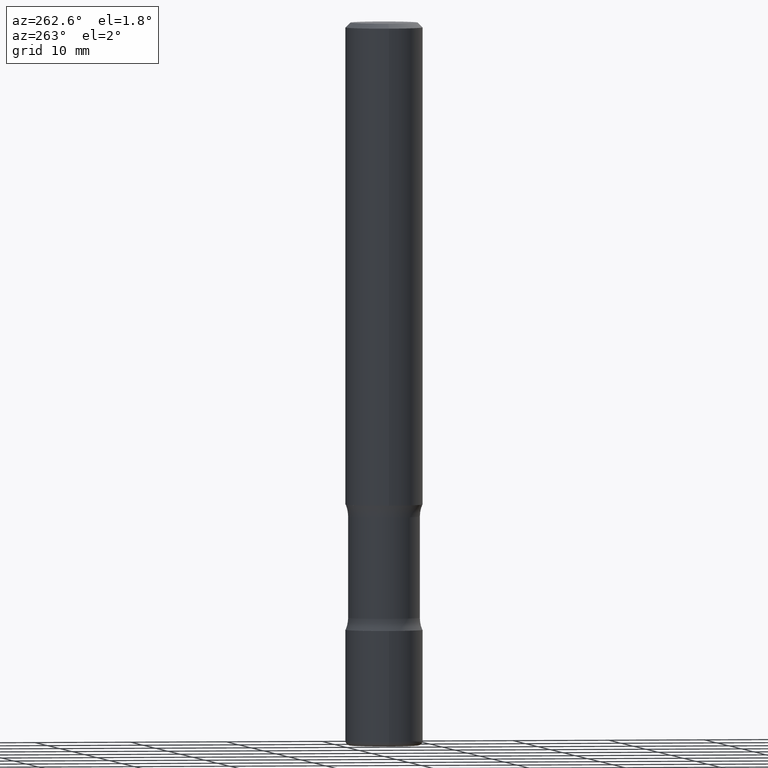
[diagram: clean part render]
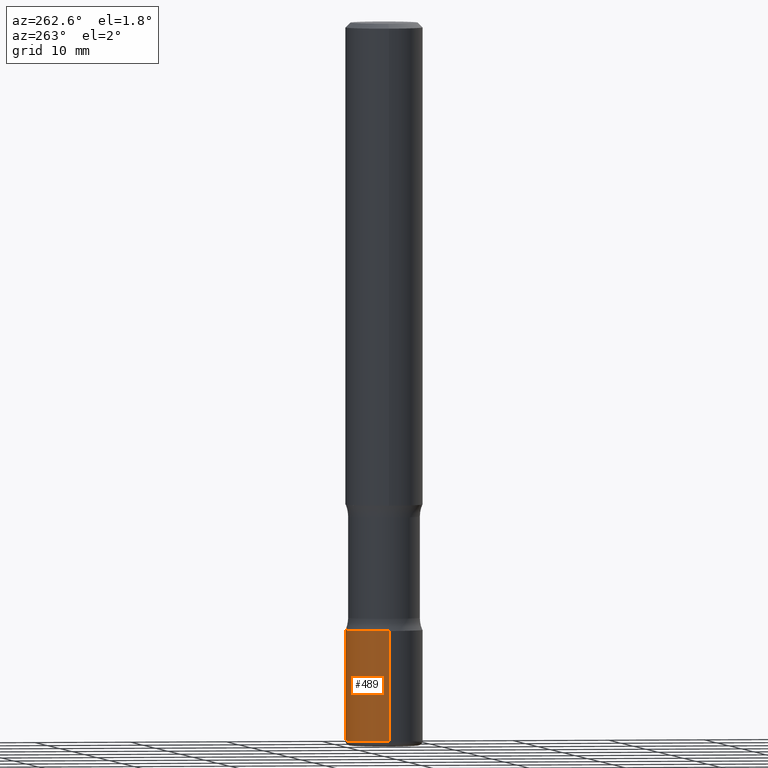
[diagram: same view with one face highlighted and labeled with its STEP entity id]
A machine part, auxiliary view. The second image highlights one B-rep face of the part: STEP entity #489.
In plain terms, the highlighted cylindrical surface (partial cylindrical patch) has radius 4.0005 mm, axis along (-0, 0, 1).
Its self-contained STEP definition (entity closure, byte-faithful):
#15 = ORIENTED_EDGE ( 'NONE', *, *, #271, .T. ) ;
#29 = DIRECTION ( 'NONE',  ( 1.000000000000000000, -6.982962677686265922E-15, 4.876176775795935232E-29 ) ) ;
#36 = CARTESIAN_POINT ( 'NONE',  ( 7.172804555421624566E-29, -1.024086391496083050E-14, -2.933100000000000041 ) ) ;
#39 = CIRCLE ( 'NONE', #440, 0.1575000000000001399 ) ;
#77 = CARTESIAN_POINT ( 'NONE',  ( -0.1575000000000001399, -8.331462305091523914E-15, -2.480399999999999494 ) ) ;
#79 = DIRECTION ( 'NONE',  ( -2.445468806185136877E-29, 3.491481338843145188E-15, 1.000000000000000000 ) ) ;
#83 = VECTOR ( 'NONE', #79, 39.37007874015748143 ) ;
#115 = EDGE_LOOP ( 'NONE', ( #549, #15, #204, #346 ) ) ;
#135 = VERTEX_POINT ( 'NONE', #77 ) ;
#183 = VERTEX_POINT ( 'NONE', #252 ) ;
#198 = CARTESIAN_POINT ( 'NONE',  ( 0.1575000000000001399, -1.099816621735587875E-15, 7.679978421878605039E-30 ) ) ;
#201 = AXIS2_PLACEMENT_3D ( 'NONE', #282, #459, #234 ) ;
#204 = ORIENTED_EDGE ( 'NONE', *, *, #454, .F. ) ;
#205 = EDGE_CURVE ( 'NONE', #416, #533, #297, .T. ) ;
#217 = EDGE_CURVE ( 'NONE', #416, #183, #39, .T. ) ;
#234 = DIRECTION ( 'NONE',  ( 1.000000000000000000, -6.982962677686268288E-15, 0.000000000000000000 ) ) ;
#248 = CIRCLE ( 'NONE', #201, 0.1575000000000001399 ) ;
#252 = CARTESIAN_POINT ( 'NONE',  ( -0.1575000000000000844, -9.121759106138672895E-15, -2.933100000000000041 ) ) ;
#271 = EDGE_CURVE ( 'NONE', #183, #135, #345, .T. ) ;
#282 = CARTESIAN_POINT ( 'NONE',  ( 6.065740826861612418E-29, -8.660270312866537270E-15, -2.480399999999999494 ) ) ;
#297 = LINE ( 'NONE', #198, #83 ) ;
#339 = AXIS2_PLACEMENT_3D ( 'NONE', #407, #409, #29 ) ;
#342 = DIRECTION ( 'NONE',  ( -2.445468806185136877E-29, 3.491481338843145188E-15, 1.000000000000000000 ) ) ;
#345 = LINE ( 'NONE', #443, #536 ) ;
#346 = ORIENTED_EDGE ( 'NONE', *, *, #205, .F. ) ;
#362 = FACE_OUTER_BOUND ( 'NONE', #115, .T. ) ;
#374 = DIRECTION ( 'NONE',  ( -2.445468806185136597E-29, 3.491481338843145583E-15, 1.000000000000000000 ) ) ;
#407 = CARTESIAN_POINT ( 'NONE',  ( 0.000000000000000000, 0.000000000000000000, 0.000000000000000000 ) ) ;
#409 = DIRECTION ( 'NONE',  ( -2.445468806185136597E-29, 3.491481338843145583E-15, 1.000000000000000000 ) ) ;
#416 = VERTEX_POINT ( 'NONE', #495 ) ;
#440 = AXIS2_PLACEMENT_3D ( 'NONE', #36, #374, #555 ) ;
#443 = CARTESIAN_POINT ( 'NONE',  ( -0.1575000000000001399, 1.119104808822158787E-15, -7.747322767151482590E-30 ) ) ;
#454 = EDGE_CURVE ( 'NONE', #533, #135, #248, .T. ) ;
#459 = DIRECTION ( 'NONE',  ( -2.445468806185136597E-29, 3.491481338843145583E-15, 1.000000000000000000 ) ) ;
#489 = ADVANCED_FACE ( 'NONE', ( #362 ), #542, .T. ) ;
#495 = CARTESIAN_POINT ( 'NONE',  ( 0.1575000000000000844, -1.134068053669641877E-14, -2.933100000000000041 ) ) ;
#500 = CARTESIAN_POINT ( 'NONE',  ( 0.1575000000000001399, -9.760086934602125539E-15, -2.480399999999999494 ) ) ;
#533 = VERTEX_POINT ( 'NONE', #500 ) ;
#536 = VECTOR ( 'NONE', #342, 39.37007874015748143 ) ;
#542 = CYLINDRICAL_SURFACE ( 'NONE', #339, 0.1575000000000001399 ) ;
#549 = ORIENTED_EDGE ( 'NONE', *, *, #217, .T. ) ;
#555 = DIRECTION ( 'NONE',  ( 1.000000000000000000, -6.982962677686268288E-15, 0.000000000000000000 ) ) ;